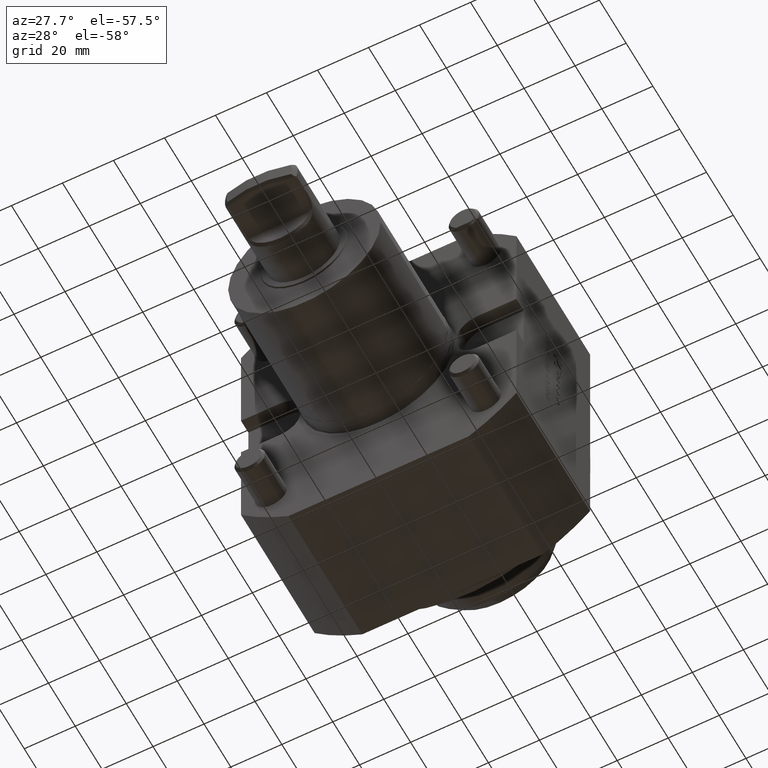
[diagram: clean part render]
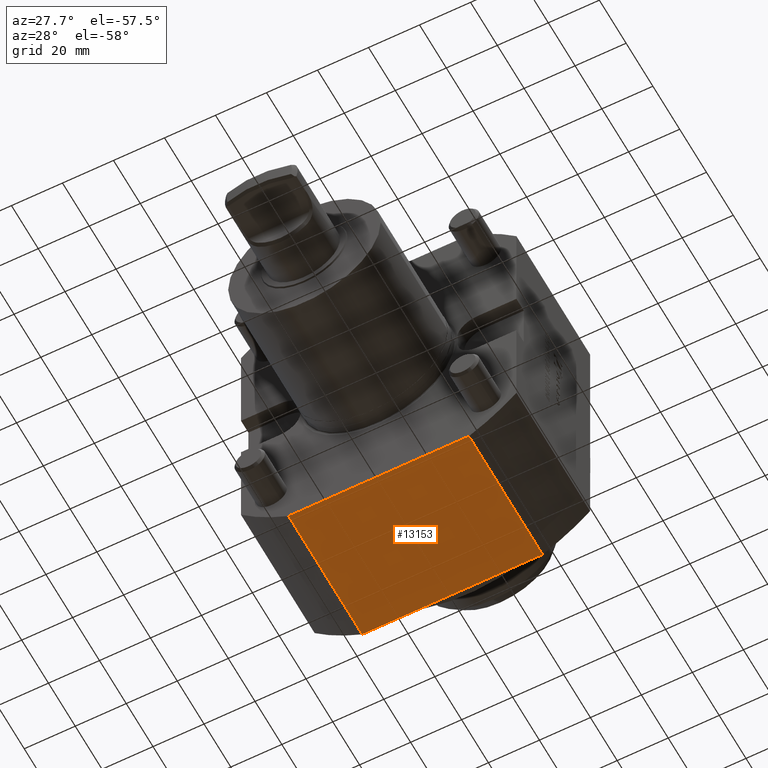
[diagram: same view with one face highlighted and labeled with its STEP entity id]
A machine part, auxiliary view. The second image highlights one B-rep face of the part: STEP entity #13153.
In plain terms, the highlighted planar face has unit normal (-0, 0, -1).
Its self-contained STEP definition (entity closure, byte-faithful):
#53 = ORIENTED_EDGE ( 'NONE', *, *, #2265, .T. ) ;
#172 = DIRECTION ( 'NONE',  ( 1.224646799147353207E-16, 1.000000000000000000, 0.000000000000000000 ) ) ;
#811 = VERTEX_POINT ( 'NONE', #7172 ) ;
#1678 = CARTESIAN_POINT ( 'NONE',  ( 35.36947836765469333, -42.99999999999988631, -65.00000000000002842 ) ) ;
#1901 = LINE ( 'NONE', #1678, #16342 ) ;
#2265 = EDGE_CURVE ( 'NONE', #20218, #811, #1901, .T. ) ;
#2270 = DIRECTION ( 'NONE',  ( -1.000000000000000000, 1.224646799147353207E-16, 3.154042683594195614E-16 ) ) ;
#2460 = CARTESIAN_POINT ( 'NONE',  ( 43.99999999999999289, -2.081668171172168513E-14, -65.00000000000002842 ) ) ;
#2545 = VERTEX_POINT ( 'NONE', #6497 ) ;
#2820 = LINE ( 'NONE', #20201, #17609 ) ;
#3783 = CARTESIAN_POINT ( 'NONE',  ( 35.36947836765470754, 54.99999999999998579, -65.00000000000002842 ) ) ;
#4425 = ORIENTED_EDGE ( 'NONE', *, *, #9544, .T. ) ;
#5644 = DIRECTION ( 'NONE',  ( 1.000000000000000000, -1.224646799147353207E-16, -3.154042683594195614E-16 ) ) ;
#5761 = VECTOR ( 'NONE', #15109, 1000.000000000000000 ) ;
#6497 = CARTESIAN_POINT ( 'NONE',  ( -35.36947836765474307, -6.938893903907228378E-15, -65.00000000000000000 ) ) ;
#7172 = CARTESIAN_POINT ( 'NONE',  ( 35.36947836765470043, -6.938893903907228378E-15, -65.00000000000002842 ) ) ;
#7824 = VECTOR ( 'NONE', #172, 1000.000000000000000 ) ;
#8339 = DIRECTION ( 'NONE',  ( -1.224646799147353207E-16, -1.000000000000000000, -0.000000000000000000 ) ) ;
#8479 = EDGE_CURVE ( 'NONE', #2545, #811, #2820, .T. ) ;
#8591 = FACE_OUTER_BOUND ( 'NONE', #17641, .T. ) ;
#9088 = CARTESIAN_POINT ( 'NONE',  ( -35.36947836765473596, 54.99999999999998579, -65.00000000000000000 ) ) ;
#9544 = EDGE_CURVE ( 'NONE', #2545, #17472, #14278, .T. ) ;
#9794 = CARTESIAN_POINT ( 'NONE',  ( -35.36947836765475017, -42.99999999999987210, -65.00000000000000000 ) ) ;
#11699 = CARTESIAN_POINT ( 'NONE',  ( 44.00000000000000000, 54.99999999999998579, -65.00000000000002842 ) ) ;
#12772 = ORIENTED_EDGE ( 'NONE', *, *, #8479, .F. ) ;
#13153 = ADVANCED_FACE ( 'Defeature completata1_26', ( #8591 ), #18342, .T. ) ;
#14278 = LINE ( 'NONE', #9794, #7824 ) ;
#15109 = DIRECTION ( 'NONE',  ( -1.000000000000000000, 1.224646799147353207E-16, 3.154042683594195121E-16 ) ) ;
#16342 = VECTOR ( 'NONE', #8339, 1000.000000000000000 ) ;
#16468 = LINE ( 'NONE', #11699, #5761 ) ;
#17420 = ORIENTED_EDGE ( 'NONE', *, *, #20759, .F. ) ;
#17472 = VERTEX_POINT ( 'NONE', #9088 ) ;
#17609 = VECTOR ( 'NONE', #5644, 1000.000000000000000 ) ;
#17641 = EDGE_LOOP ( 'NONE', ( #4425, #17420, #53, #12772 ) ) ;
#18342 = PLANE ( 'NONE',  #20863 ) ;
#20042 = DIRECTION ( 'NONE',  ( -3.154042683594195614E-16, 3.862588276837759756E-32, -1.000000000000000000 ) ) ;
#20201 = CARTESIAN_POINT ( 'NONE',  ( -2.050127744336227484E-14, 0.000000000000000000, -65.00000000000001421 ) ) ;
#20218 = VERTEX_POINT ( 'NONE', #3783 ) ;
#20759 = EDGE_CURVE ( 'NONE', #20218, #17472, #16468, .T. ) ;
#20863 = AXIS2_PLACEMENT_3D ( 'NONE', #2460, #20042, #2270 ) ;